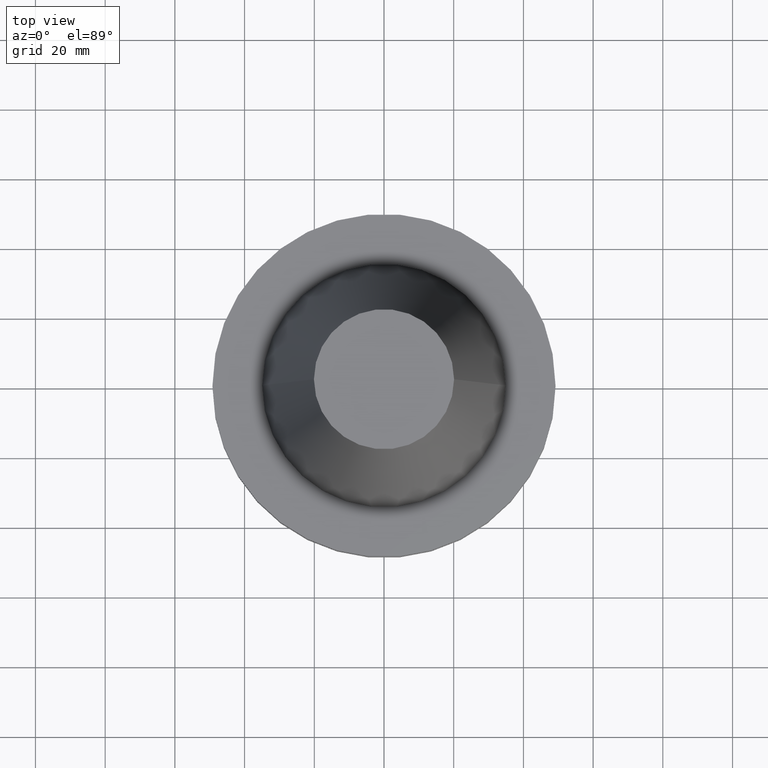
[diagram: clean part render]
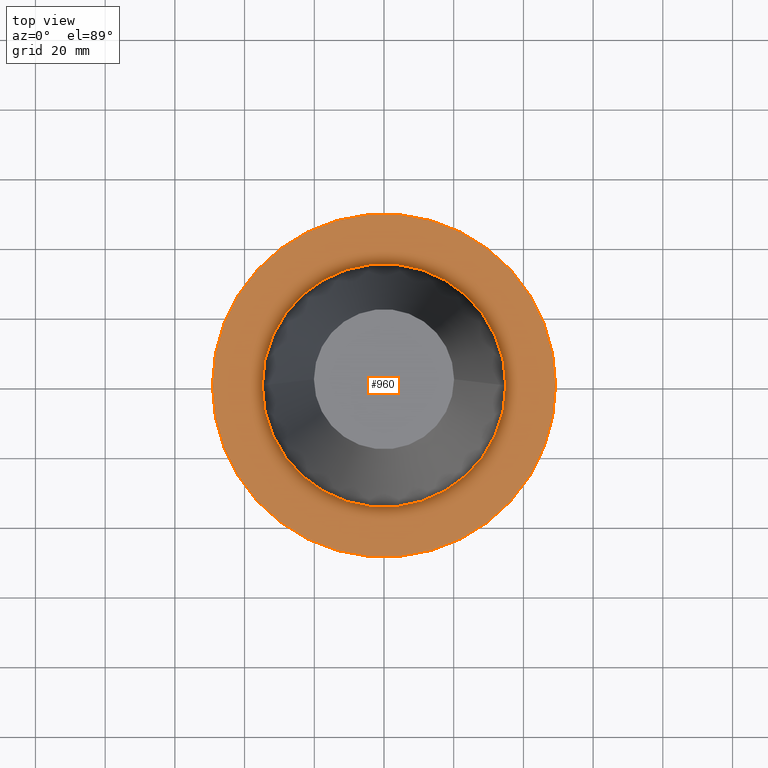
[diagram: same view with one face highlighted and labeled with its STEP entity id]
A machine part, top view. The second image highlights one B-rep face of the part: STEP entity #960.
In plain terms, the highlighted planar face has unit normal (0, 0, -1).
Its self-contained STEP definition (entity closure, byte-faithful):
#9 = DIRECTION ( 'NONE',  ( -0.000000000000000000, -0.000000000000000000, 1.000000000000000000 ) ) ;
#25 = DIRECTION ( 'NONE',  ( 1.000000000000000000, 0.000000000000000000, 0.000000000000000000 ) ) ;
#32 = FACE_BOUND ( 'NONE', #239, .T. ) ;
#59 = AXIS2_PLACEMENT_3D ( 'NONE', #438, #9, #427 ) ;
#69 = AXIS2_PLACEMENT_3D ( 'NONE', #192, #434, #356 ) ;
#84 = ORIENTED_EDGE ( 'NONE', *, *, #435, .F. ) ;
#117 = FACE_OUTER_BOUND ( 'NONE', #595, .T. ) ;
#124 = CIRCLE ( 'NONE', #294, 34.92499999999999005 ) ;
#145 = EDGE_CURVE ( 'NONE', #236, #491, #203, .T. ) ;
#164 = ORIENTED_EDGE ( 'NONE', *, *, #1019, .T. ) ;
#172 = EDGE_CURVE ( 'NONE', #754, #986, #853, .T. ) ;
#192 = CARTESIAN_POINT ( 'NONE',  ( 0.000000000000000000, 49.21499999999999631, -1.499999999999992895 ) ) ;
#203 = CIRCLE ( 'NONE', #59, 49.21499999999999631 ) ;
#236 = VERTEX_POINT ( 'NONE', #888 ) ;
#239 = EDGE_LOOP ( 'NONE', ( #1029, #84 ) ) ;
#269 = DIRECTION ( 'NONE',  ( -0.000000000000000000, -0.000000000000000000, 1.000000000000000000 ) ) ;
#276 = DIRECTION ( 'NONE',  ( -0.000000000000000000, -0.000000000000000000, 1.000000000000000000 ) ) ;
#294 = AXIS2_PLACEMENT_3D ( 'NONE', #317, #1000, #485 ) ;
#308 = CARTESIAN_POINT ( 'NONE',  ( 34.92499999999999005, 0.000000000000000000, -1.499999999999987566 ) ) ;
#310 = AXIS2_PLACEMENT_3D ( 'NONE', #776, #269, #25 ) ;
#317 = CARTESIAN_POINT ( 'NONE',  ( 0.000000000000000000, 0.000000000000000000, -1.499999999999987566 ) ) ;
#356 = DIRECTION ( 'NONE',  ( -1.000000000000000000, 0.000000000000000000, -0.000000000000000000 ) ) ;
#372 = AXIS2_PLACEMENT_3D ( 'NONE', #1028, #276, #696 ) ;
#427 = DIRECTION ( 'NONE',  ( 1.000000000000000000, 0.000000000000000000, 0.000000000000000000 ) ) ;
#434 = DIRECTION ( 'NONE',  ( 0.000000000000000000, 0.000000000000000000, -1.000000000000000000 ) ) ;
#435 = EDGE_CURVE ( 'NONE', #986, #754, #124, .T. ) ;
#438 = CARTESIAN_POINT ( 'NONE',  ( 0.000000000000000000, 0.000000000000000000, -1.499999999999987566 ) ) ;
#450 = CARTESIAN_POINT ( 'NONE',  ( 49.21499999999999631, 0.000000000000000000, -1.499999999999987566 ) ) ;
#485 = DIRECTION ( 'NONE',  ( 1.000000000000000000, 0.000000000000000000, 0.000000000000000000 ) ) ;
#491 = VERTEX_POINT ( 'NONE', #450 ) ;
#595 = EDGE_LOOP ( 'NONE', ( #164, #630 ) ) ;
#630 = ORIENTED_EDGE ( 'NONE', *, *, #145, .T. ) ;
#696 = DIRECTION ( 'NONE',  ( 1.000000000000000000, 0.000000000000000000, 0.000000000000000000 ) ) ;
#754 = VERTEX_POINT ( 'NONE', #308 ) ;
#776 = CARTESIAN_POINT ( 'NONE',  ( 0.000000000000000000, 0.000000000000000000, -1.499999999999987566 ) ) ;
#851 = CARTESIAN_POINT ( 'NONE',  ( -34.92499999999999005, 4.277078946022130098E-15, -1.499999999999987566 ) ) ;
#853 = CIRCLE ( 'NONE', #310, 34.92499999999999005 ) ;
#888 = CARTESIAN_POINT ( 'NONE',  ( -49.21499999999999631, 6.027099222003697826E-15, -1.499999999999987566 ) ) ;
#960 = ADVANCED_FACE ( 'NONE', ( #32, #117 ), #1031, .F. ) ;
#986 = VERTEX_POINT ( 'NONE', #851 ) ;
#1000 = DIRECTION ( 'NONE',  ( -0.000000000000000000, -0.000000000000000000, 1.000000000000000000 ) ) ;
#1019 = EDGE_CURVE ( 'NONE', #491, #236, #1057, .T. ) ;
#1028 = CARTESIAN_POINT ( 'NONE',  ( 0.000000000000000000, 0.000000000000000000, -1.499999999999987566 ) ) ;
#1029 = ORIENTED_EDGE ( 'NONE', *, *, #172, .F. ) ;
#1031 = PLANE ( 'NONE',  #69 ) ;
#1057 = CIRCLE ( 'NONE', #372, 49.21499999999999631 ) ;